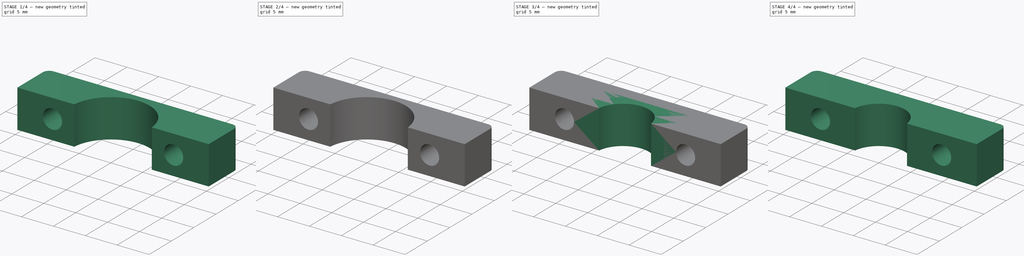
[diagram: build sequence overview — one tinted view per stage of 4, left to right]
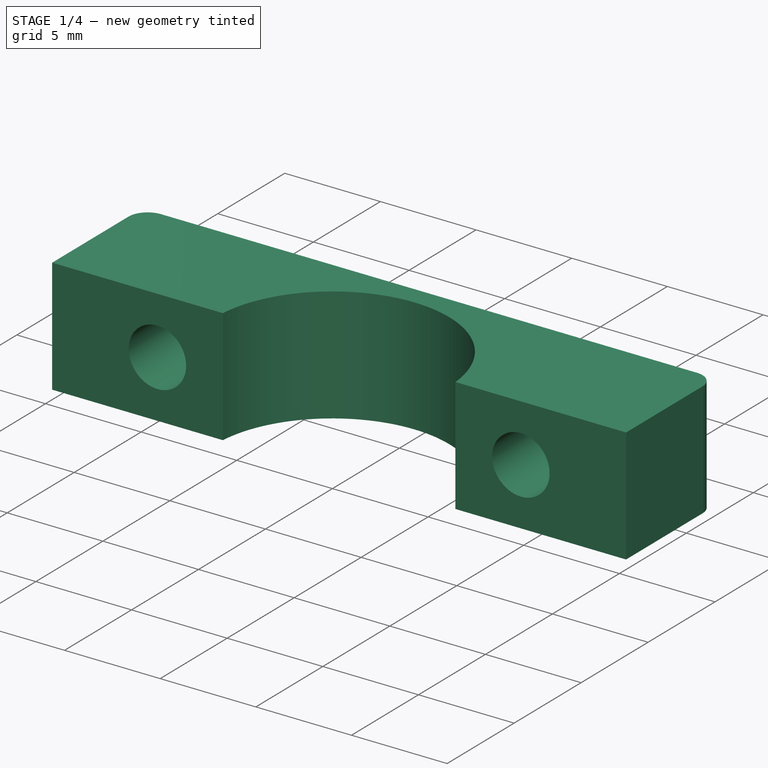
[diagram: stage 1 of 4 — iso view after this stage's code; geometry added in this stage tinted green]
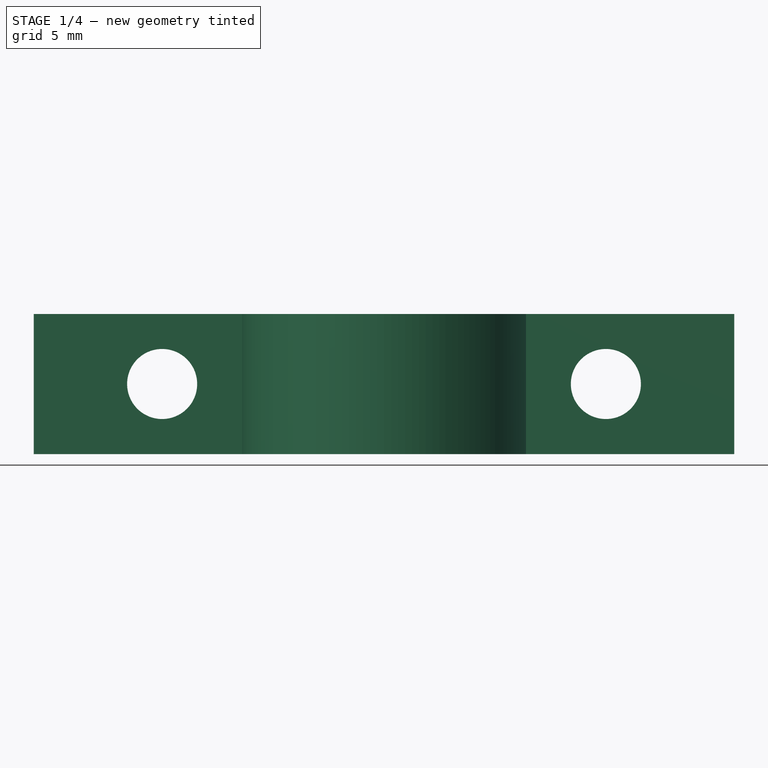
[diagram: stage 1 of 4 — front view after this stage's code; geometry added in this stage tinted green]
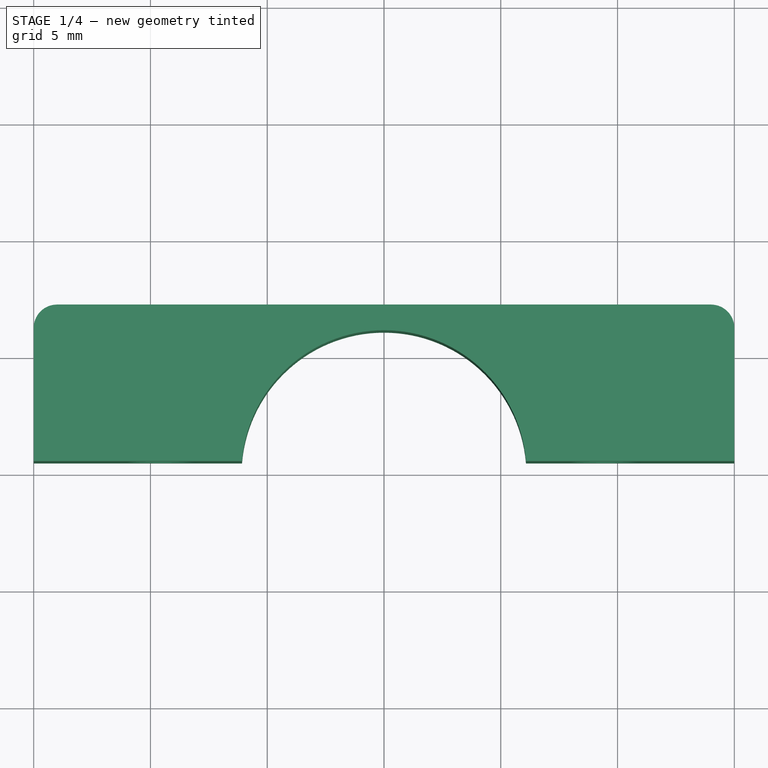
[diagram: stage 1 of 4 — top view after this stage's code; geometry added in this stage tinted green]
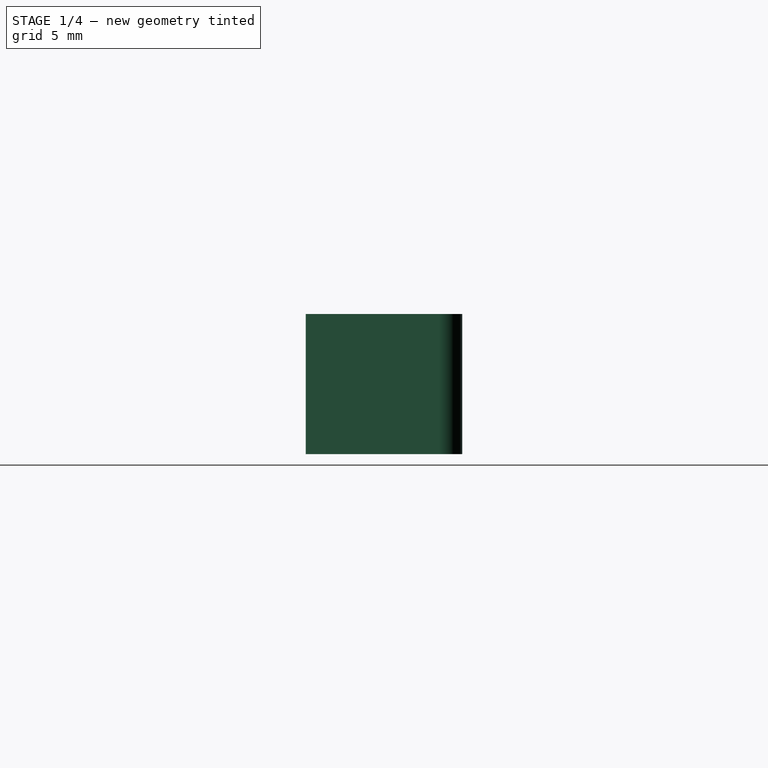
[diagram: stage 1 of 4 — right view after this stage's code; geometry added in this stage tinted green]
FCSTD DOCUMENT  (FreeCAD 0.19R23463 (Git))
Label: arandela_end_stop_8mm
License: All rights reserved
LicenseURL: http://en.wikipedia.org/wiki/All_rights_reserved
objects: Sketcher::SketchObject×8, PartDesign::Pad×4, PartDesign::Pocket×4, PartDesign::Fillet×4, PartDesign::Body×4
note: 36 computed .brp shape members not serialized (recipe doc carries the construction recipe); baked Part::Feature solids carry a one-line shape summary decoded from their .brp

FEATURE [PartDesign::Body] Body002  label="end_stop_base_12mm"
  Group = -> [Sketch004,Pad002,Sketch005,Pocket002,Fillet002]
  Origin = -> Origin002
  Tip = -> Fillet002
FEATURE [Sketcher::SketchObject] Sketch006
  MapMode = 5
  Support = -> [XY_Plane003]
  expr: Constraints[10] = 19 + 6 + 5
  sketch-geometry (25):
    g0: LineSegment StartX=-15 StartY=0.5 StartZ=0 EndX=15 EndY=0.5 EndZ=0
    g1: LineSegment StartX=15 StartY=0.5 StartZ=0 EndX=15 EndY=0 EndZ=0
    g2: LineSegment StartX=15 StartY=0 StartZ=0 EndX=-15 EndY=0 EndZ=0
    g3: LineSegment StartX=-15 StartY=0 StartZ=0 EndX=-15 EndY=0.5 EndZ=0
    g4: ArcOfCircle CenterX=0 CenterY=0 CenterZ=0 NormalX=0 NormalY=0 NormalZ=1 AngleXU=0 Radius=6.1 StartAngle=0.0820593 EndAngle=3.05953
    g5: LineSegment StartX=-6.07947 StartY=0.5 StartZ=0 EndX=-15 EndY=0.5 EndZ=0
    g6: LineSegment StartX=6.07947 StartY=0.5 StartZ=0 EndX=15 EndY=0.5 EndZ=0
    g7: LineSegment StartX=-15 StartY=0.5 StartZ=0 EndX=-15 EndY=7.2 EndZ=0
    g8: LineSegment StartX=-15 StartY=7.2 StartZ=0 EndX=15 EndY=7.2 EndZ=0
    g9: LineSegment StartX=15 StartY=7.2 StartZ=0 EndX=15 EndY=0.5 EndZ=0
    g10: LineSegment StartX=0 StartY=7.2 StartZ=0 EndX=0 EndY=6.1 EndZ=0
    g11: LineSegment StartX=-12.35 StartY=5.2 StartZ=0 EndX=-6.65 EndY=5.2 EndZ=0
    g12: LineSegment StartX=-6.65 StartY=5.2 StartZ=0 EndX=-6.65 EndY=2.5 EndZ=0
    g13: LineSegment StartX=-6.65 StartY=2.5 StartZ=0 EndX=-12.35 EndY=2.5 EndZ=0
    g14: LineSegment StartX=-12.35 StartY=2.5 StartZ=0 EndX=-12.35 EndY=5.2 EndZ=0
    g15: LineSegment StartX=-12.35 StartY=5.2 StartZ=0 EndX=-6.65 EndY=2.5 EndZ=0
    g16: LineSegment StartX=-6.65 StartY=5.2 StartZ=0 EndX=-12.35 EndY=2.5 EndZ=0
    g17: GeomPoint X=-9.5 Y=3.85 Z=0
    g18: LineSegment StartX=6.65 StartY=5.2 StartZ=0 EndX=12.35 EndY=5.2 EndZ=0
    g19: LineSegment StartX=12.35 StartY=5.2 StartZ=0 EndX=12.35 EndY=2.5 EndZ=0
    g20: LineSegment StartX=12.35 StartY=2.5 StartZ=0 EndX=6.65 EndY=2.5 EndZ=0
    g21: LineSegment StartX=6.65 StartY=2.5 StartZ=0 EndX=6.65 EndY=5.2 EndZ=0
    g22: LineSegment StartX=6.65 StartY=5.2 StartZ=0 EndX=12.35 EndY=2.5 EndZ=0
    g23: LineSegment StartX=12.35 StartY=5.2 StartZ=0 EndX=6.65 EndY=2.5 EndZ=0
    g24: GeomPoint X=9.5 Y=3.85 Z=0
  constraints (66):
    c: Coincident(g0,g1)
    c: Coincident(g1,g2)
    c: Coincident(g2,g3)
    c: Coincident(g3,g0)
    c: Horizontal(g0)
    c: Horizontal(g2)
    c: Vertical(g1)
    c: Vertical(g3)
    c: Symmetric(g2,g1,g-1)
    c: DistanceY(g1,g1) = 0.5
    c: DistanceX(g2,g2) = 30
    c: Coincident(g4,g-1)
    c: PointOnObject(g4,g0)
    c: PointOnObject(g4,g0)
    c: Coincident(g5,g4)
    c: Coincident(g5,g0)
    c: Coincident(g6,g4)
    c: Coincident(g6,g0)
    c: Coincident(g7,g5)
    c: Vertical(g7)
    c: Coincident(g8,g7)
    c: Horizontal(g8)
    c: Coincident(g9,g8)
    c: Coincident(g9,g6)
    c: Vertical(g9)
    c: PointOnObject(g10,g8)
    c: PointOnObject(g10,g4)
    c: Perpendicular(g4,g10)
    c: Vertical(g10)
    c: Coincident(g11,g12)
    c: Coincident(g12,g13)
    c: Coincident(g13,g14)
    c: Coincident(g14,g11)
    c: Horizontal(g11)
    c: Horizontal(g13)
    c: Vertical(g12)
    c: Vertical(g14)
    c: DistanceX(g11,g11) = 5.7
    c: DistanceY(g12,g12) = 2.7
    c: Coincident(g15,g11)
    c: Coincident(g15,g12)
    c: Coincident(g16,g11)
    c: Coincident(g16,g13)
    c: PointOnObject(g17,g15)
    c: PointOnObject(g17,g16)
    c: Coincident(g18,g19)
    c: Coincident(g19,g20)
    c: Coincident(g20,g21)
    c: Coincident(g21,g18)
    c: Horizontal(g18)
    c: Horizontal(g20)
    c: Vertical(g19)
    c: Vertical(g21)
    c: Equal(g11,g18) = 5.7
    c: Equal(g12,g19) = 2.7
    c: Coincident(g22,g18)
    c: Coincident(g22,g19)
    c: Coincident(g23,g18)
    c: Coincident(g23,g20)
    c: PointOnObject(g24,g22)
    c: PointOnObject(g24,g23)
    c: Symmetric(g17,g24,g-2)
    c: DistanceX(g17,g24) = 19
    c: Diameter(g4) = 12.2
    c: DistanceY(g4,g20) = 2
    c: DistanceY(g18,g8) = 2
FEATURE [PartDesign::Pad] Pad003
  Direction = (1,1,1)
  Length = 6
  Length2 = 100
  Profile = -> Sketch006
  Type = 0
FEATURE [Sketcher::SketchObject] Sketch007
  ExternalGeometry = -> [Pad003]
  MapMode = 5
  Placement = pos=(0,0,0) rot=(1,0,0;1.5708rad)
  Support = -> [XZ_Plane003]
  sketch-geometry (4):
    g0: Circle CenterX=-9.5 CenterY=3 CenterZ=0 NormalX=0 NormalY=0 NormalZ=1 AngleXU=0 Radius=1.5
    g1: Circle CenterX=9.5 CenterY=3 CenterZ=0 NormalX=0 NormalY=0 NormalZ=1 AngleXU=0 Radius=1.5
    g2: LineSegment StartX=15 StartY=-1e-16 StartZ=0 EndX=9.5 EndY=3 EndZ=0
    g3: LineSegment StartX=9.5 StartY=3 StartZ=0 EndX=15 EndY=6 EndZ=0
  constraints (10):
    c: Diameter(g1) = 3
    c: Equal(g1,g0)
    c: Symmetric(g0,g1,g-2)
    c: DistanceX(g0,g1) = 19
    c: Coincident(g2,g-3)
    c: Coincident(g2,g1)
    c: Coincident(g3,g1)
    c: Coincident(g3,g-3)
    c: Equal(g3,g2)
    c: DistanceY(g2,g1) = 3
FEATURE [PartDesign::Pocket] Pocket003
  BaseFeature = -> Pad003
  Length = 5
  Length2 = 100
  Midplane = true
  Profile = -> Sketch007
  Type = 1
FEATURE [PartDesign::Fillet] Fillet003
  Base = -> Pocket003 [Edge22,Edge19]
  BaseFeature = -> Pocket003
  Radius = 1
  SupportTransform = false
FEATURE [PartDesign::Body] Body003  label="endstop_tightener_12mm"
  Group = -> [Sketch006,Pad003,Sketch007,Pocket003,Fillet003]
  Origin = -> Origin003
  Placement = pos=(0,-11,0) rot=(0,0,1;3.14159rad)
  Tip = -> Fillet003
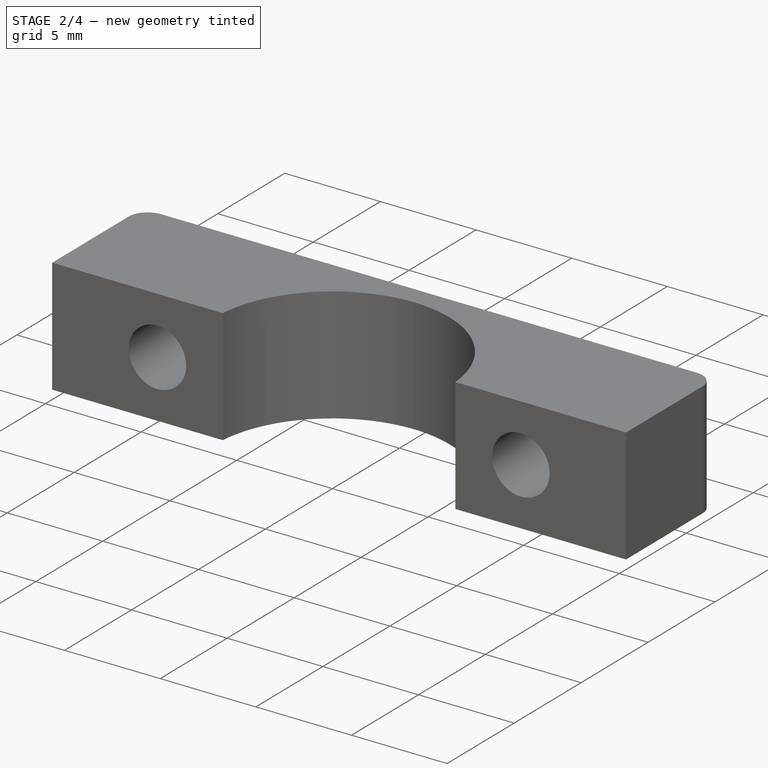
[diagram: stage 2 of 4 — iso view after this stage's code; geometry added in this stage tinted green]
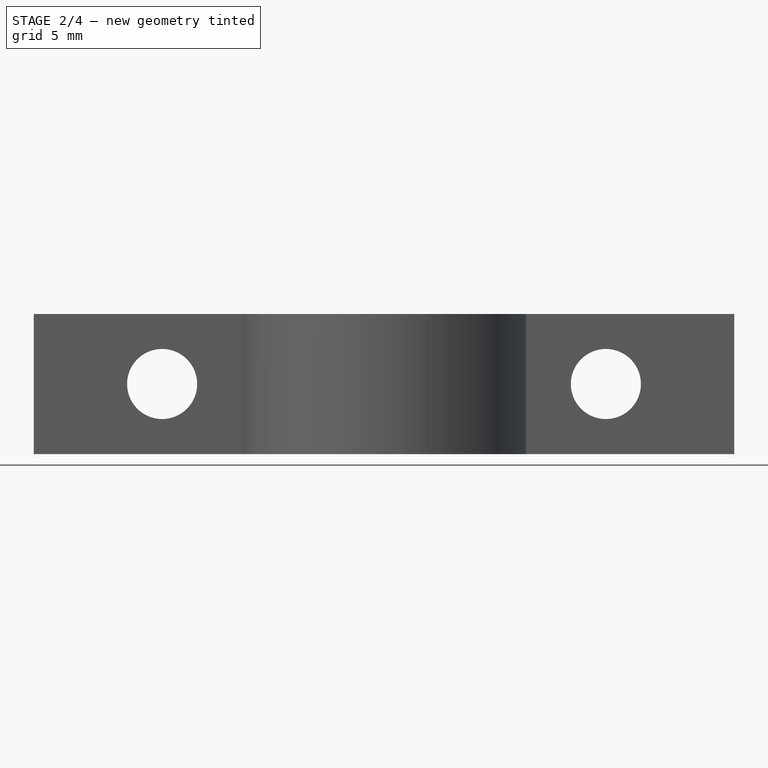
[diagram: stage 2 of 4 — front view after this stage's code; geometry added in this stage tinted green]
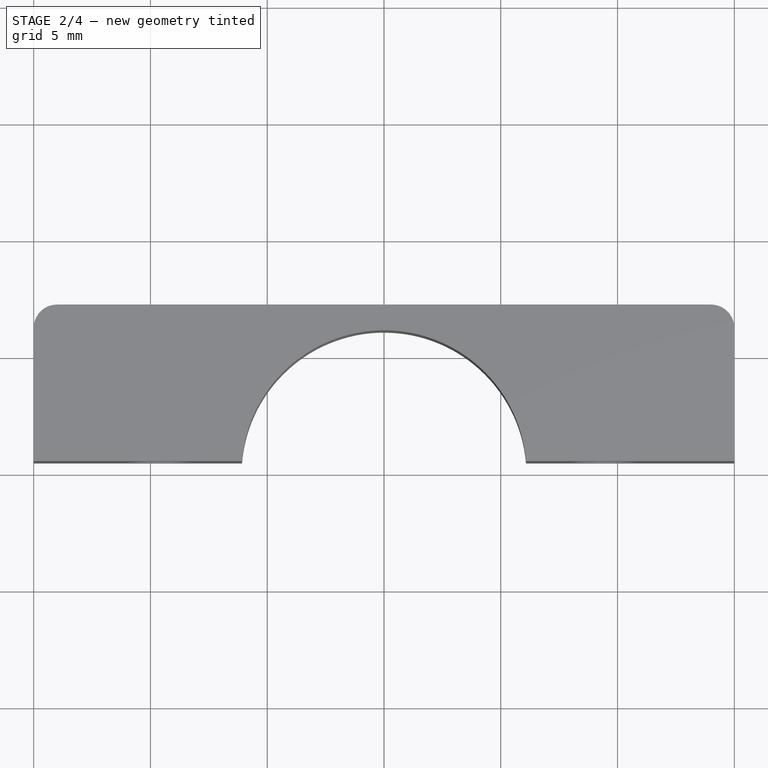
[diagram: stage 2 of 4 — top view after this stage's code; geometry added in this stage tinted green]
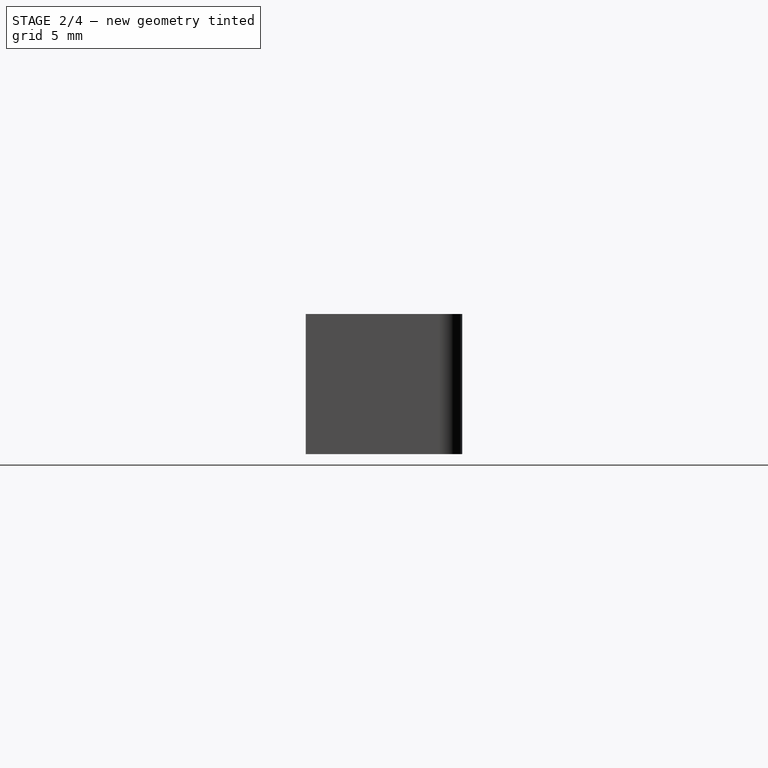
[diagram: stage 2 of 4 — right view after this stage's code; geometry added in this stage tinted green]
FEATURE [PartDesign::Body] Body  label="end_stop_base"
  Group = -> [Sketch,Pad,Sketch001,Pocket,Fillet001]
  Origin = -> Origin
  Tip = -> Fillet001
FEATURE [Sketcher::SketchObject] Sketch004
  MapMode = 5
  Support = -> [XY_Plane002]
  expr: Constraints[10] = 19 + 6 + 5
  sketch-geometry (25):
    g0: LineSegment StartX=-15 StartY=0.5 StartZ=0 EndX=15 EndY=0.5 EndZ=0
    g1: LineSegment StartX=15 StartY=0.5 StartZ=0 EndX=15 EndY=0 EndZ=0
    g2: LineSegment StartX=15 StartY=0 StartZ=0 EndX=-15 EndY=0 EndZ=0
    g3: LineSegment StartX=-15 StartY=0 StartZ=0 EndX=-15 EndY=0.5 EndZ=0
    g4: ArcOfCircle CenterX=0 CenterY=0 CenterZ=0 NormalX=0 NormalY=0 NormalZ=1 AngleXU=0 Radius=6.1 StartAngle=0.0820593 EndAngle=3.05953
    g5: LineSegment StartX=-6.07947 StartY=0.5 StartZ=0 EndX=-15 EndY=0.5 EndZ=0
    g6: LineSegment StartX=6.07947 StartY=0.5 StartZ=0 EndX=15 EndY=0.5 EndZ=0
    g7: LineSegment StartX=-15 StartY=0.5 StartZ=0 EndX=-15 EndY=7.2 EndZ=0
    g8: LineSegment StartX=-15 StartY=7.2 StartZ=0 EndX=15 EndY=7.2 EndZ=0
    g9: LineSegment StartX=15 StartY=7.2 StartZ=0 EndX=15 EndY=0.5 EndZ=0
    g10: LineSegment StartX=0 StartY=7.2 StartZ=0 EndX=0 EndY=6.1 EndZ=0
    g11: LineSegment StartX=-12.35 StartY=5.2 StartZ=0 EndX=-6.65 EndY=5.2 EndZ=0
    g12: LineSegment StartX=-6.65 StartY=5.2 StartZ=0 EndX=-6.65 EndY=2.5 EndZ=0
    g13: LineSegment StartX=-6.65 StartY=2.5 StartZ=0 EndX=-12.35 EndY=2.5 EndZ=0
    g14: LineSegment StartX=-12.35 StartY=2.5 StartZ=0 EndX=-12.35 EndY=5.2 EndZ=0
    g15: LineSegment StartX=-12.35 StartY=5.2 StartZ=0 EndX=-6.65 EndY=2.5 EndZ=0
    g16: LineSegment StartX=-6.65 StartY=5.2 StartZ=0 EndX=-12.35 EndY=2.5 EndZ=0
    g17: GeomPoint X=-9.5 Y=3.85 Z=0
    g18: LineSegment StartX=6.65 StartY=5.2 StartZ=0 EndX=12.35 EndY=5.2 EndZ=0
    g19: LineSegment StartX=12.35 StartY=5.2 StartZ=0 EndX=12.35 EndY=2.5 EndZ=0
    g20: LineSegment StartX=12.35 StartY=2.5 StartZ=0 EndX=6.65 EndY=2.5 EndZ=0
    g21: LineSegment StartX=6.65 StartY=2.5 StartZ=0 EndX=6.65 EndY=5.2 EndZ=0
    g22: LineSegment StartX=6.65 StartY=5.2 StartZ=0 EndX=12.35 EndY=2.5 EndZ=0
    g23: LineSegment StartX=12.35 StartY=5.2 StartZ=0 EndX=6.65 EndY=2.5 EndZ=0
    g24: GeomPoint X=9.5 Y=3.85 Z=0
  constraints (66):
    c: Coincident(g0,g1)
    c: Coincident(g1,g2)
    c: Coincident(g2,g3)
    c: Coincident(g3,g0)
    c: Horizontal(g0)
    c: Horizontal(g2)
    c: Vertical(g1)
    c: Vertical(g3)
    c: Symmetric(g2,g1,g-1)
    c: DistanceY(g1,g1) = 0.5
    c: DistanceX(g2,g2) = 30
    c: Coincident(g4,g-1)
    c: PointOnObject(g4,g0)
    c: PointOnObject(g4,g0)
    c: Coincident(g5,g4)
    c: Coincident(g5,g0)
    c: Coincident(g6,g4)
    c: Coincident(g6,g0)
    c: Coincident(g7,g5)
    c: Vertical(g7)
    c: Coincident(g8,g7)
    c: Horizontal(g8)
    c: Coincident(g9,g8)
    c: Coincident(g9,g6)
    c: Vertical(g9)
    c: PointOnObject(g10,g8)
    c: PointOnObject(g10,g4)
    c: Perpendicular(g4,g10)
    c: Vertical(g10)
    c: Coincident(g11,g12)
    c: Coincident(g12,g13)
    c: Coincident(g13,g14)
    c: Coincident(g14,g11)
    c: Horizontal(g11)
    c: Horizontal(g13)
    c: Vertical(g12)
    c: Vertical(g14)
    c: DistanceX(g11,g11) = 5.7
    c: DistanceY(g12,g12) = 2.7
    c: Coincident(g15,g11)
    c: Coincident(g15,g12)
    c: Coincident(g16,g11)
    c: Coincident(g16,g13)
    c: PointOnObject(g17,g15)
    c: PointOnObject(g17,g16)
    c: Coincident(g18,g19)
    c: Coincident(g19,g20)
    c: Coincident(g20,g21)
    c: Coincident(g21,g18)
    c: Horizontal(g18)
    c: Horizontal(g20)
    c: Vertical(g19)
    c: Vertical(g21)
    c: Equal(g11,g18) = 5.7
    c: Equal(g12,g19) = 2.7
    c: Coincident(g22,g18)
    c: Coincident(g22,g19)
    c: Coincident(g23,g18)
    c: Coincident(g23,g20)
    c: PointOnObject(g24,g22)
    c: PointOnObject(g24,g23)
    c: Symmetric(g17,g24,g-2)
    c: DistanceX(g17,g24) = 19
    c: Diameter(g4) = 12.2
    c: DistanceY(g4,g20) = 2
    c: DistanceY(g18,g8) = 2
FEATURE [PartDesign::Pad] Pad002
  Direction = (1,1,1)
  Length = 6
  Length2 = 100
  Profile = -> Sketch004
  Type = 0
FEATURE [Sketcher::SketchObject] Sketch005
  ExternalGeometry = -> [Pad002]
  MapMode = 5
  Placement = pos=(0,0,0) rot=(1,0,0;1.5708rad)
  Support = -> [XZ_Plane002]
  sketch-geometry (4):
    g0: Circle CenterX=-9.5 CenterY=3 CenterZ=0 NormalX=0 NormalY=0 NormalZ=1 AngleXU=0 Radius=1.5
    g1: Circle CenterX=9.5 CenterY=3 CenterZ=0 NormalX=0 NormalY=0 NormalZ=1 AngleXU=0 Radius=1.5
    g2: LineSegment StartX=15 StartY=-1e-16 StartZ=0 EndX=9.5 EndY=3 EndZ=0
    g3: LineSegment StartX=9.5 StartY=3 StartZ=0 EndX=15 EndY=6 EndZ=0
  constraints (10):
    c: Diameter(g1) = 3
    c: Equal(g1,g0)
    c: Symmetric(g0,g1,g-2)
    c: DistanceX(g0,g1) = 19
    c: Coincident(g2,g-3)
    c: Coincident(g2,g1)
    c: Coincident(g3,g1)
    c: Coincident(g3,g-3)
    c: Equal(g3,g2)
    c: DistanceY(g2,g1) = 3
FEATURE [PartDesign::Pocket] Pocket002
  BaseFeature = -> Pad002
  Length = 5
  Length2 = 100
  Midplane = true
  Profile = -> Sketch005
  Type = 1
FEATURE [PartDesign::Fillet] Fillet002
  Base = -> Pocket002 [Edge38,Edge35]
  BaseFeature = -> Pocket002
  Radius = 1
  SupportTransform = false
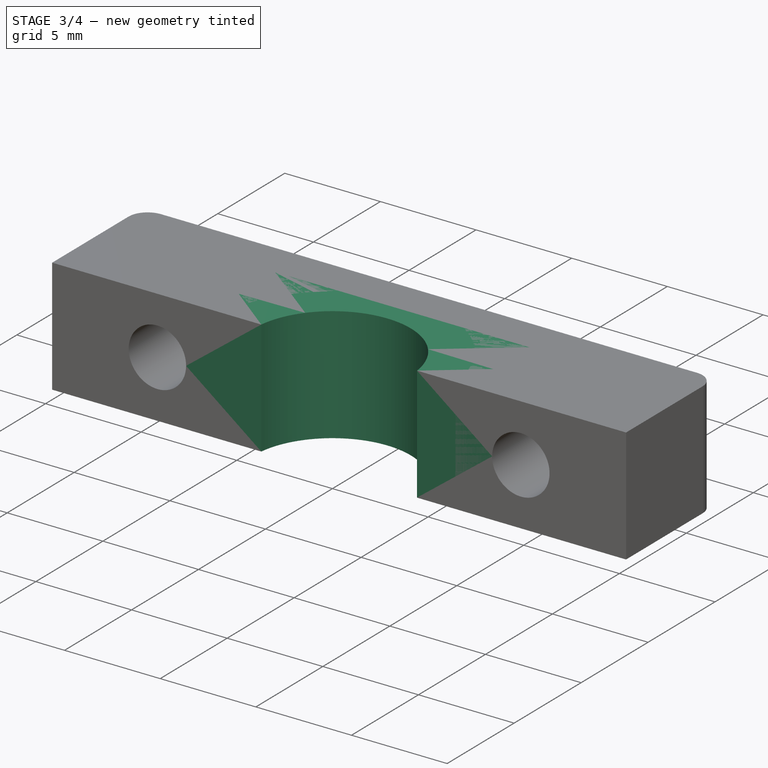
[diagram: stage 3 of 4 — iso view after this stage's code; geometry added in this stage tinted green]
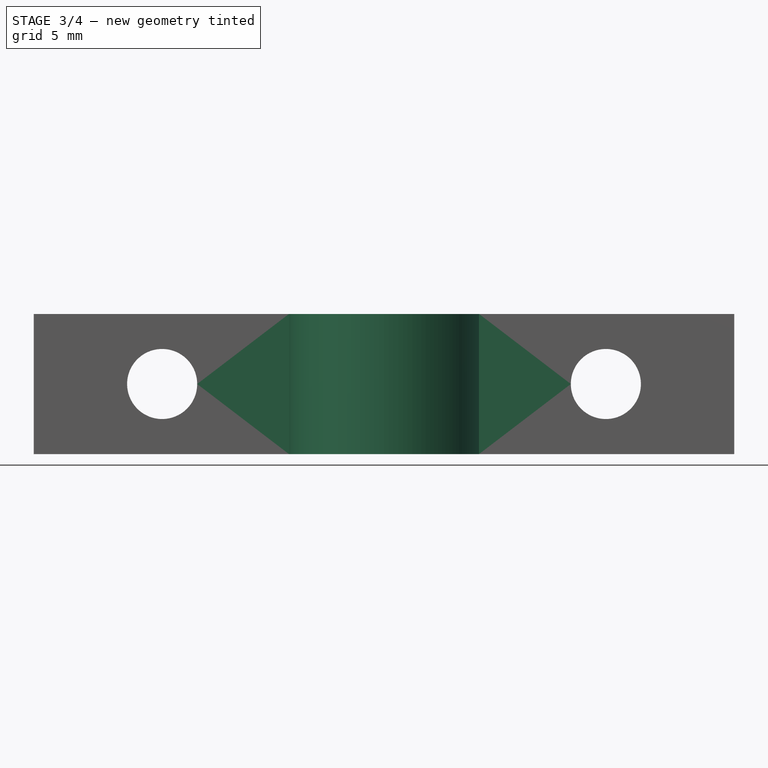
[diagram: stage 3 of 4 — front view after this stage's code; geometry added in this stage tinted green]
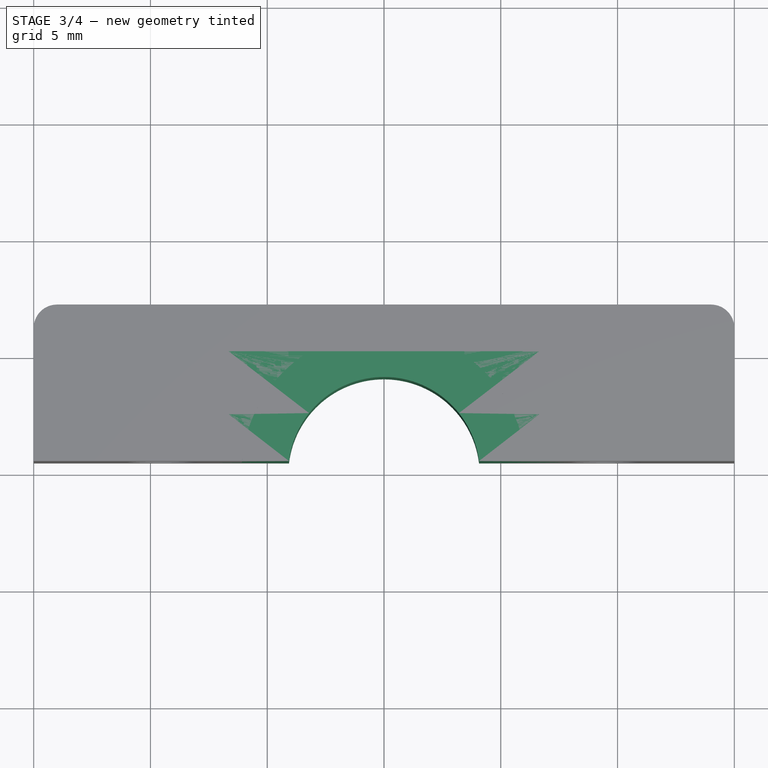
[diagram: stage 3 of 4 — top view after this stage's code; geometry added in this stage tinted green]
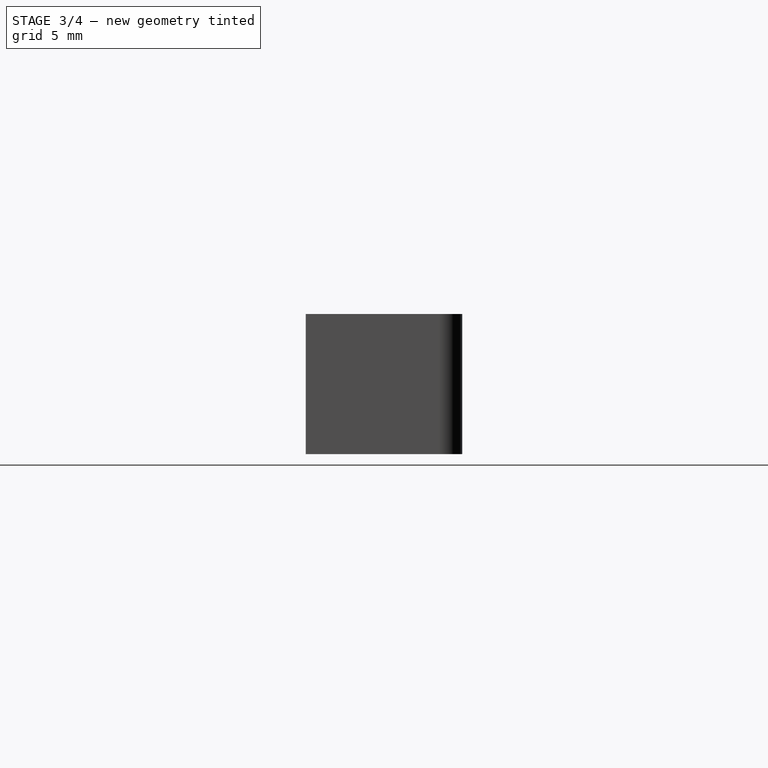
[diagram: stage 3 of 4 — right view after this stage's code; geometry added in this stage tinted green]
FEATURE [Sketcher::SketchObject] Sketch
  MapMode = 5
  Support = -> [XY_Plane]
  expr: Constraints[10] = 19 + 6 + 5
  sketch-geometry (25):
    g0: LineSegment StartX=-15 StartY=0.5 StartZ=0 EndX=15 EndY=0.5 EndZ=0
    g1: LineSegment StartX=15 StartY=0.5 StartZ=0 EndX=15 EndY=0 EndZ=0
    g2: LineSegment StartX=15 StartY=0 StartZ=0 EndX=-15 EndY=0 EndZ=0
    g3: LineSegment StartX=-15 StartY=0 StartZ=0 EndX=-15 EndY=0.5 EndZ=0
    g4: ArcOfCircle CenterX=0 CenterY=0 CenterZ=0 NormalX=0 NormalY=0 NormalZ=1 AngleXU=0 Radius=4.1 StartAngle=0.122256 EndAngle=3.01934
    g5: LineSegment StartX=-4.0694 StartY=0.5 StartZ=0 EndX=-15 EndY=0.5 EndZ=0
    g6: LineSegment StartX=4.0694 StartY=0.5 StartZ=0 EndX=15 EndY=0.5 EndZ=0
    g7: LineSegment StartX=-15 StartY=0.5 StartZ=0 EndX=-15 EndY=7.2 EndZ=0
    g8: LineSegment StartX=-15 StartY=7.2 StartZ=0 EndX=15 EndY=7.2 EndZ=0
    g9: LineSegment StartX=15 StartY=7.2 StartZ=0 EndX=15 EndY=0.5 EndZ=0
    g10: LineSegment StartX=0 StartY=7.2 StartZ=0 EndX=0 EndY=4.1 EndZ=0
    g11: LineSegment StartX=-12.35 StartY=5.2 StartZ=0 EndX=-6.65 EndY=5.2 EndZ=0
    g12: LineSegment StartX=-6.65 StartY=5.2 StartZ=0 EndX=-6.65 EndY=2.5 EndZ=0
    g13: LineSegment StartX=-6.65 StartY=2.5 StartZ=0 EndX=-12.35 EndY=2.5 EndZ=0
    g14: LineSegment StartX=-12.35 StartY=2.5 StartZ=0 EndX=-12.35 EndY=5.2 EndZ=0
    g15: LineSegment StartX=-12.35 StartY=5.2 StartZ=0 EndX=-6.65 EndY=2.5 EndZ=0
    g16: LineSegment StartX=-6.65 StartY=5.2 StartZ=0 EndX=-12.35 EndY=2.5 EndZ=0
    g17: GeomPoint X=-9.5 Y=3.85 Z=0
    g18: LineSegment StartX=6.65 StartY=5.2 StartZ=0 EndX=12.35 EndY=5.2 EndZ=0
    g19: LineSegment StartX=12.35 StartY=5.2 StartZ=0 EndX=12.35 EndY=2.5 EndZ=0
    g20: LineSegment StartX=12.35 StartY=2.5 StartZ=0 EndX=6.65 EndY=2.5 EndZ=0
    g21: LineSegment StartX=6.65 StartY=2.5 StartZ=0 EndX=6.65 EndY=5.2 EndZ=0
    g22: LineSegment StartX=6.65 StartY=5.2 StartZ=0 EndX=12.35 EndY=2.5 EndZ=0
    g23: LineSegment StartX=12.35 StartY=5.2 StartZ=0 EndX=6.65 EndY=2.5 EndZ=0
    g24: GeomPoint X=9.5 Y=3.85 Z=0
  constraints (66):
    c: Coincident(g0,g1)
    c: Coincident(g1,g2)
    c: Coincident(g2,g3)
    c: Coincident(g3,g0)
    c: Horizontal(g0)
    c: Horizontal(g2)
    c: Vertical(g1)
    c: Vertical(g3)
    c: Symmetric(g2,g1,g-1)
    c: DistanceY(g1,g1) = 0.5
    c: DistanceX(g2,g2) = 30
    c: Coincident(g4,g-1)
    c: PointOnObject(g4,g0)
    c: PointOnObject(g4,g0)
    c: Coincident(g5,g4)
    c: Coincident(g5,g0)
    c: Coincident(g6,g4)
    c: Coincident(g6,g0)
    c: Coincident(g7,g5)
    c: Vertical(g7)
    c: Coincident(g8,g7)
    c: Horizontal(g8)
    c: Coincident(g9,g8)
    c: Coincident(g9,g6)
    c: Vertical(g9)
    c: PointOnObject(g10,g8)
    c: PointOnObject(g10,g4)
    c: Perpendicular(g4,g10)
    c: Vertical(g10)
    c: Coincident(g11,g12)
    c: Coincident(g12,g13)
    c: Coincident(g13,g14)
    c: Coincident(g14,g11)
    c: Horizontal(g11)
    c: Horizontal(g13)
    c: Vertical(g12)
    c: Vertical(g14)
    c: DistanceX(g11,g11) = 5.7
    c: DistanceY(g12,g12) = 2.7
    c: Coincident(g15,g11)
    c: Coincident(g15,g12)
    c: Coincident(g16,g11)
    c: Coincident(g16,g13)
    c: PointOnObject(g17,g15)
    c: PointOnObject(g17,g16)
    c: Coincident(g18,g19)
    c: Coincident(g19,g20)
    c: Coincident(g20,g21)
    c: Coincident(g21,g18)
    c: Horizontal(g18)
    c: Horizontal(g20)
    c: Vertical(g19)
    c: Vertical(g21)
    c: Equal(g11,g18) = 5.7
    c: Equal(g12,g19) = 2.7
    c: Coincident(g22,g18)
    c: Coincident(g22,g19)
    c: Coincident(g23,g18)
    c: Coincident(g23,g20)
    c: PointOnObject(g24,g22)
    c: PointOnObject(g24,g23)
    c: Symmetric(g17,g24,g-2)
    c: DistanceX(g17,g24) = 19
    c: Diameter(g4) = 8.2
    c: DistanceY(g4,g20) = 2
    c: DistanceY(g18,g8) = 2
FEATURE [PartDesign::Pad] Pad
  Direction = (1,1,1)
  Length = 6
  Length2 = 100
  Profile = -> Sketch
  Type = 0
FEATURE [Sketcher::SketchObject] Sketch001
  ExternalGeometry = -> [Pad]
  MapMode = 5
  Placement = pos=(0,0,0) rot=(1,0,0;1.5708rad)
  Support = -> [XZ_Plane]
  sketch-geometry (4):
    g0: Circle CenterX=-9.5 CenterY=3 CenterZ=0 NormalX=0 NormalY=0 NormalZ=1 AngleXU=0 Radius=1.5
    g1: Circle CenterX=9.5 CenterY=3 CenterZ=0 NormalX=0 NormalY=0 NormalZ=1 AngleXU=0 Radius=1.5
    g2: LineSegment StartX=15 StartY=-1e-16 StartZ=0 EndX=9.5 EndY=3 EndZ=0
    g3: LineSegment StartX=9.5 StartY=3 StartZ=0 EndX=15 EndY=6 EndZ=0
  constraints (10):
    c: Diameter(g1) = 3
    c: Equal(g1,g0)
    c: Symmetric(g0,g1,g-2)
    c: DistanceX(g0,g1) = 19
    c: Coincident(g2,g-3)
    c: Coincident(g2,g1)
    c: Coincident(g3,g1)
    c: Coincident(g3,g-3)
    c: Equal(g3,g2)
    c: DistanceY(g2,g1) = 3
FEATURE [PartDesign::Pocket] Pocket
  BaseFeature = -> Pad
  Length = 5
  Length2 = 100
  Midplane = true
  Profile = -> Sketch001
  Type = 1
FEATURE [PartDesign::Body] Body001  label="endstop_tightener"
  Group = -> [Sketch002,Pad001,Sketch003,Pocket001,Fillet]
  Origin = -> Origin001
  Placement = pos=(0,-11,0) rot=(0,0,1;3.14159rad)
  Tip = -> Fillet
FEATURE [PartDesign::Fillet] Fillet001
  Base = -> Pocket [Edge38,Edge35]
  BaseFeature = -> Pocket
  Radius = 1
  SupportTransform = false
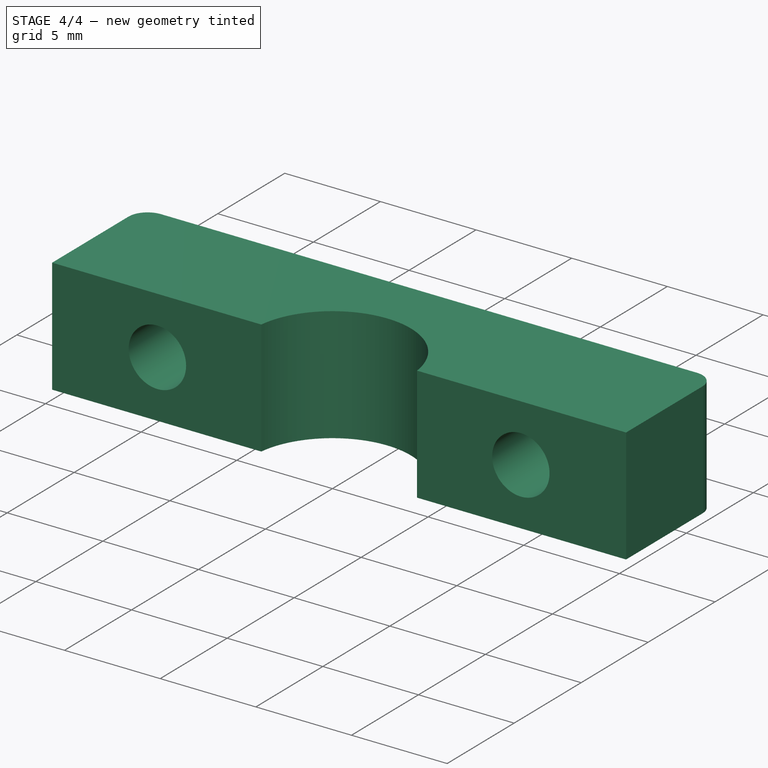
[diagram: stage 4 of 4 — iso view after this stage's code; geometry added in this stage tinted green]
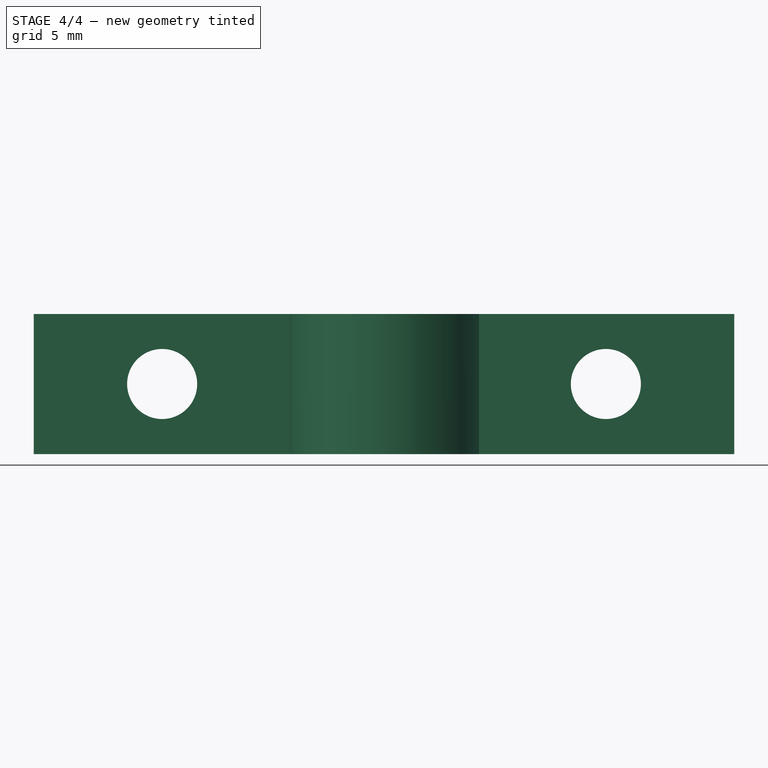
[diagram: stage 4 of 4 — front view after this stage's code; geometry added in this stage tinted green]
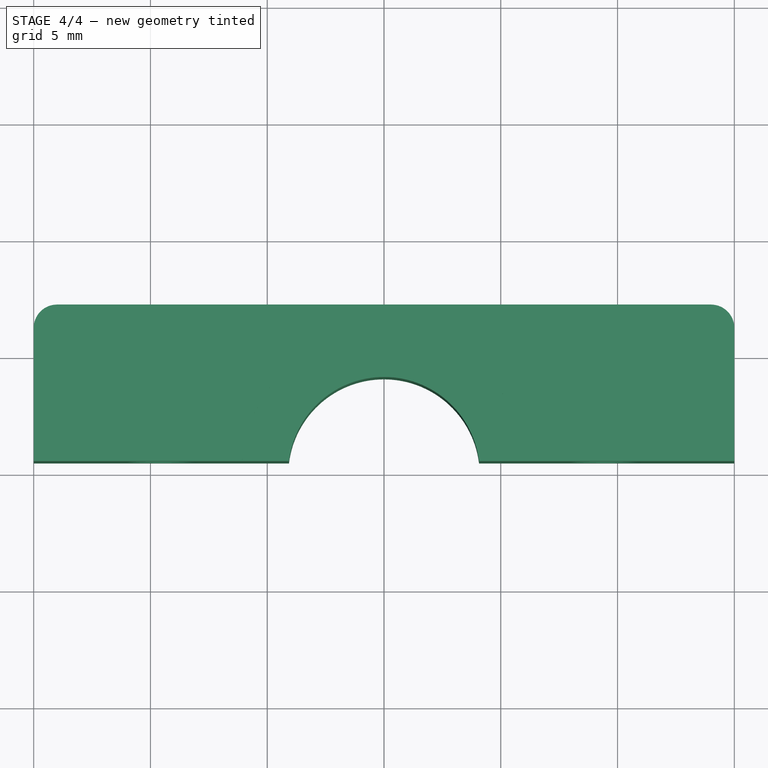
[diagram: stage 4 of 4 — top view after this stage's code; geometry added in this stage tinted green]
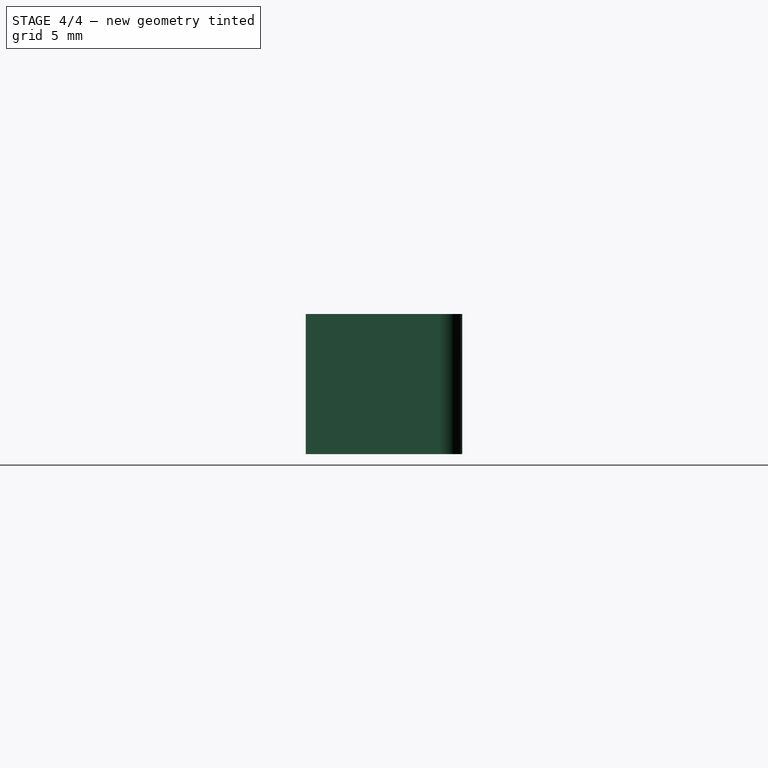
[diagram: stage 4 of 4 — right view after this stage's code; geometry added in this stage tinted green]
FEATURE [Sketcher::SketchObject] Sketch002
  MapMode = 5
  Support = -> [XY_Plane001]
  expr: Constraints[10] = 19 + 6 + 5
  sketch-geometry (25):
    g0: LineSegment StartX=-15 StartY=0.5 StartZ=0 EndX=15 EndY=0.5 EndZ=0
    g1: LineSegment StartX=15 StartY=0.5 StartZ=0 EndX=15 EndY=0 EndZ=0
    g2: LineSegment StartX=15 StartY=0 StartZ=0 EndX=-15 EndY=0 EndZ=0
    g3: LineSegment StartX=-15 StartY=0 StartZ=0 EndX=-15 EndY=0.5 EndZ=0
    g4: ArcOfCircle CenterX=0 CenterY=0 CenterZ=0 NormalX=0 NormalY=0 NormalZ=1 AngleXU=0 Radius=4.1 StartAngle=0.122256 EndAngle=3.01934
    g5: LineSegment StartX=-4.0694 StartY=0.5 StartZ=0 EndX=-15 EndY=0.5 EndZ=0
    g6: LineSegment StartX=4.0694 StartY=0.5 StartZ=0 EndX=15 EndY=0.5 EndZ=0
    g7: LineSegment StartX=-15 StartY=0.5 StartZ=0 EndX=-15 EndY=7.2 EndZ=0
    g8: LineSegment StartX=-15 StartY=7.2 StartZ=0 EndX=15 EndY=7.2 EndZ=0
    g9: LineSegment StartX=15 StartY=7.2 StartZ=0 EndX=15 EndY=0.5 EndZ=0
    g10: LineSegment StartX=0 StartY=7.2 StartZ=0 EndX=0 EndY=4.1 EndZ=0
    g11: LineSegment StartX=-12.35 StartY=5.2 StartZ=0 EndX=-6.65 EndY=5.2 EndZ=0
    g12: LineSegment StartX=-6.65 StartY=5.2 StartZ=0 EndX=-6.65 EndY=2.5 EndZ=0
    g13: LineSegment StartX=-6.65 StartY=2.5 StartZ=0 EndX=-12.35 EndY=2.5 EndZ=0
    g14: LineSegment StartX=-12.35 StartY=2.5 StartZ=0 EndX=-12.35 EndY=5.2 EndZ=0
    g15: LineSegment StartX=-12.35 StartY=5.2 StartZ=0 EndX=-6.65 EndY=2.5 EndZ=0
    g16: LineSegment StartX=-6.65 StartY=5.2 StartZ=0 EndX=-12.35 EndY=2.5 EndZ=0
    g17: GeomPoint X=-9.5 Y=3.85 Z=0
    g18: LineSegment StartX=6.65 StartY=5.2 StartZ=0 EndX=12.35 EndY=5.2 EndZ=0
    g19: LineSegment StartX=12.35 StartY=5.2 StartZ=0 EndX=12.35 EndY=2.5 EndZ=0
    g20: LineSegment StartX=12.35 StartY=2.5 StartZ=0 EndX=6.65 EndY=2.5 EndZ=0
    g21: LineSegment StartX=6.65 StartY=2.5 StartZ=0 EndX=6.65 EndY=5.2 EndZ=0
    g22: LineSegment StartX=6.65 StartY=5.2 StartZ=0 EndX=12.35 EndY=2.5 EndZ=0
    g23: LineSegment StartX=12.35 StartY=5.2 StartZ=0 EndX=6.65 EndY=2.5 EndZ=0
    g24: GeomPoint X=9.5 Y=3.85 Z=0
  constraints (66):
    c: Coincident(g0,g1)
    c: Coincident(g1,g2)
    c: Coincident(g2,g3)
    c: Coincident(g3,g0)
    c: Horizontal(g0)
    c: Horizontal(g2)
    c: Vertical(g1)
    c: Vertical(g3)
    c: Symmetric(g2,g1,g-1)
    c: DistanceY(g1,g1) = 0.5
    c: DistanceX(g2,g2) = 30
    c: Coincident(g4,g-1)
    c: PointOnObject(g4,g0)
    c: PointOnObject(g4,g0)
    c: Coincident(g5,g4)
    c: Coincident(g5,g0)
    c: Coincident(g6,g4)
    c: Coincident(g6,g0)
    c: Coincident(g7,g5)
    c: Vertical(g7)
    c: Coincident(g8,g7)
    c: Horizontal(g8)
    c: Coincident(g9,g8)
    c: Coincident(g9,g6)
    c: Vertical(g9)
    c: PointOnObject(g10,g8)
    c: PointOnObject(g10,g4)
    c: Perpendicular(g4,g10)
    c: Vertical(g10)
    c: Coincident(g11,g12)
    c: Coincident(g12,g13)
    c: Coincident(g13,g14)
    c: Coincident(g14,g11)
    c: Horizontal(g11)
    c: Horizontal(g13)
    c: Vertical(g12)
    c: Vertical(g14)
    c: DistanceX(g11,g11) = 5.7
    c: DistanceY(g12,g12) = 2.7
    c: Coincident(g15,g11)
    c: Coincident(g15,g12)
    c: Coincident(g16,g11)
    c: Coincident(g16,g13)
    c: PointOnObject(g17,g15)
    c: PointOnObject(g17,g16)
    c: Coincident(g18,g19)
    c: Coincident(g19,g20)
    c: Coincident(g20,g21)
    c: Coincident(g21,g18)
    c: Horizontal(g18)
    c: Horizontal(g20)
    c: Vertical(g19)
    c: Vertical(g21)
    c: Equal(g11,g18) = 5.7
    c: Equal(g12,g19) = 2.7
    c: Coincident(g22,g18)
    c: Coincident(g22,g19)
    c: Coincident(g23,g18)
    c: Coincident(g23,g20)
    c: PointOnObject(g24,g22)
    c: PointOnObject(g24,g23)
    c: Symmetric(g17,g24,g-2)
    c: DistanceX(g17,g24) = 19
    c: Diameter(g4) = 8.2
    c: DistanceY(g4,g20) = 2
    c: DistanceY(g18,g8) = 2
FEATURE [PartDesign::Pad] Pad001
  Direction = (1,1,1)
  Length = 6
  Length2 = 100
  Profile = -> Sketch002
  Type = 0
FEATURE [Sketcher::SketchObject] Sketch003
  ExternalGeometry = -> [Pad001]
  MapMode = 5
  Placement = pos=(0,0,0) rot=(1,0,0;1.5708rad)
  Support = -> [XZ_Plane001]
  sketch-geometry (4):
    g0: Circle CenterX=-9.5 CenterY=3 CenterZ=0 NormalX=0 NormalY=0 NormalZ=1 AngleXU=0 Radius=1.5
    g1: Circle CenterX=9.5 CenterY=3 CenterZ=0 NormalX=0 NormalY=0 NormalZ=1 AngleXU=0 Radius=1.5
    g2: LineSegment StartX=15 StartY=-1e-16 StartZ=0 EndX=9.5 EndY=3 EndZ=0
    g3: LineSegment StartX=9.5 StartY=3 StartZ=0 EndX=15 EndY=6 EndZ=0
  constraints (10):
    c: Diameter(g1) = 3
    c: Equal(g1,g0)
    c: Symmetric(g0,g1,g-2)
    c: DistanceX(g0,g1) = 19
    c: Coincident(g2,g-3)
    c: Coincident(g2,g1)
    c: Coincident(g3,g1)
    c: Coincident(g3,g-3)
    c: Equal(g3,g2)
    c: DistanceY(g2,g1) = 3
FEATURE [PartDesign::Pocket] Pocket001
  BaseFeature = -> Pad001
  Length = 5
  Length2 = 100
  Midplane = true
  Profile = -> Sketch003
  Type = 1
FEATURE [PartDesign::Fillet] Fillet
  Base = -> Pocket001 [Edge22,Edge19]
  BaseFeature = -> Pocket001
  Radius = 1
  SupportTransform = false
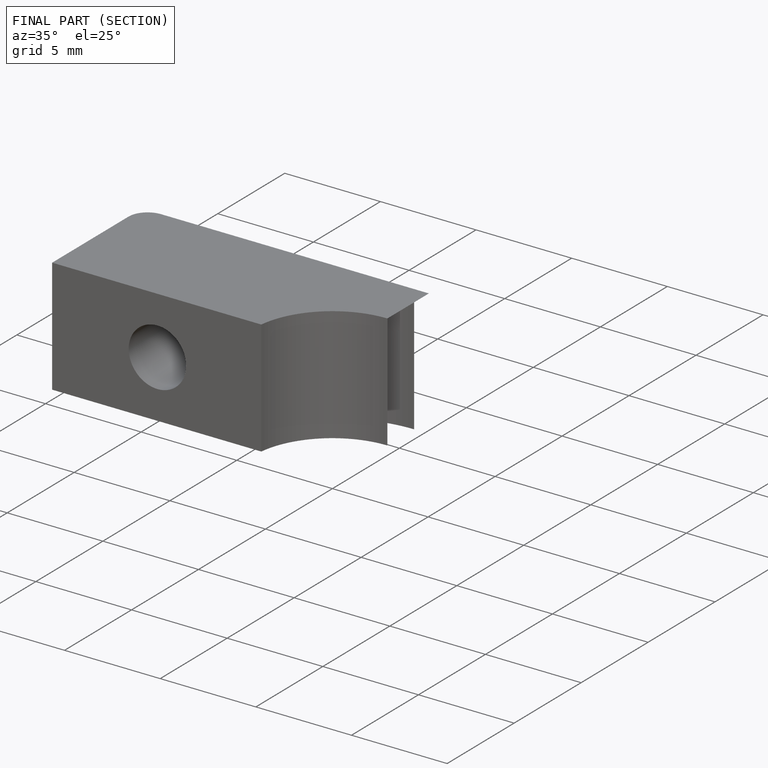
[diagram: finished part — half-section view (interior)]
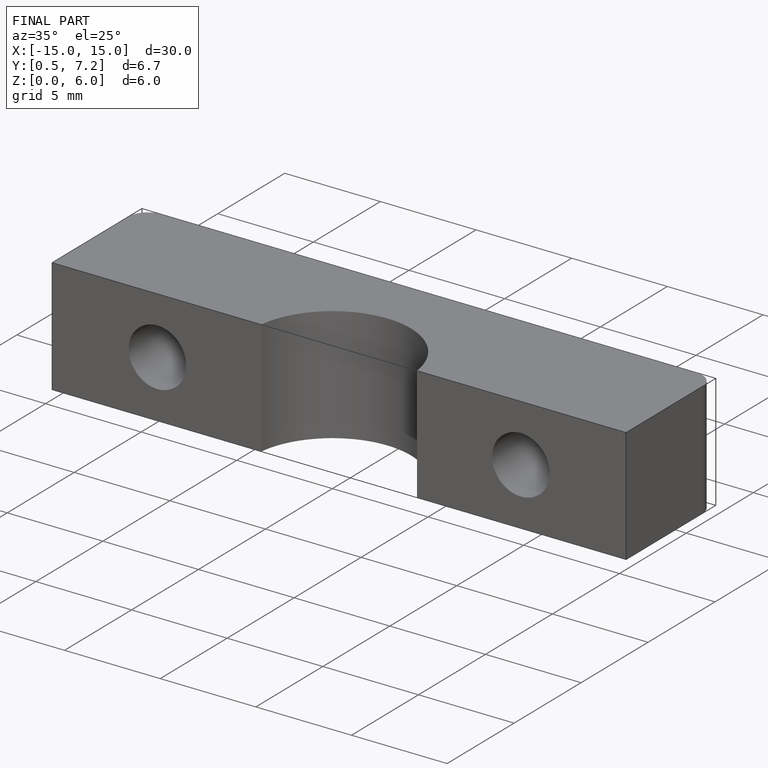
[diagram: finished part — iso view with bounding-box wireframe]
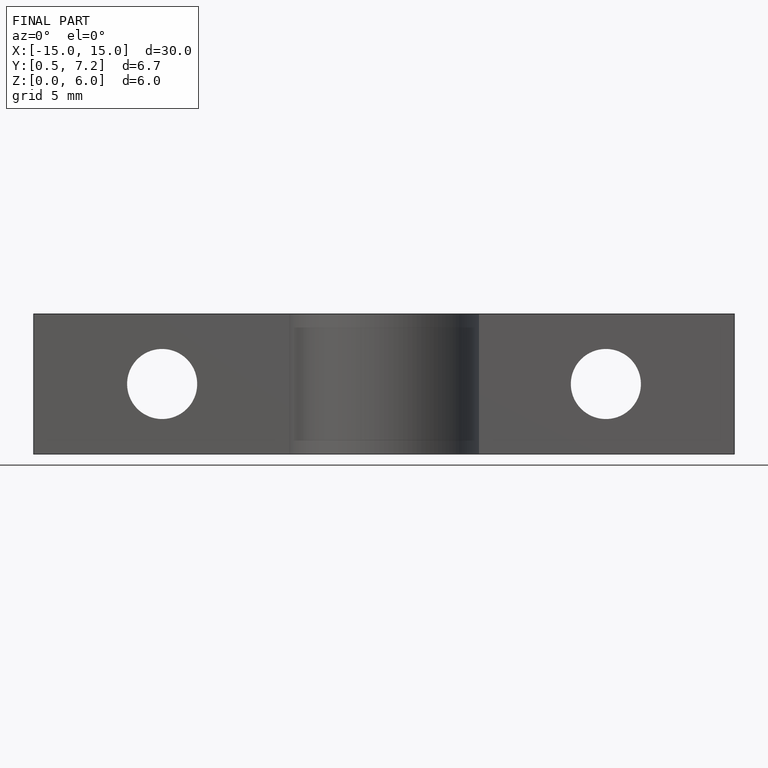
[diagram: finished part — front view with bounding-box wireframe]
